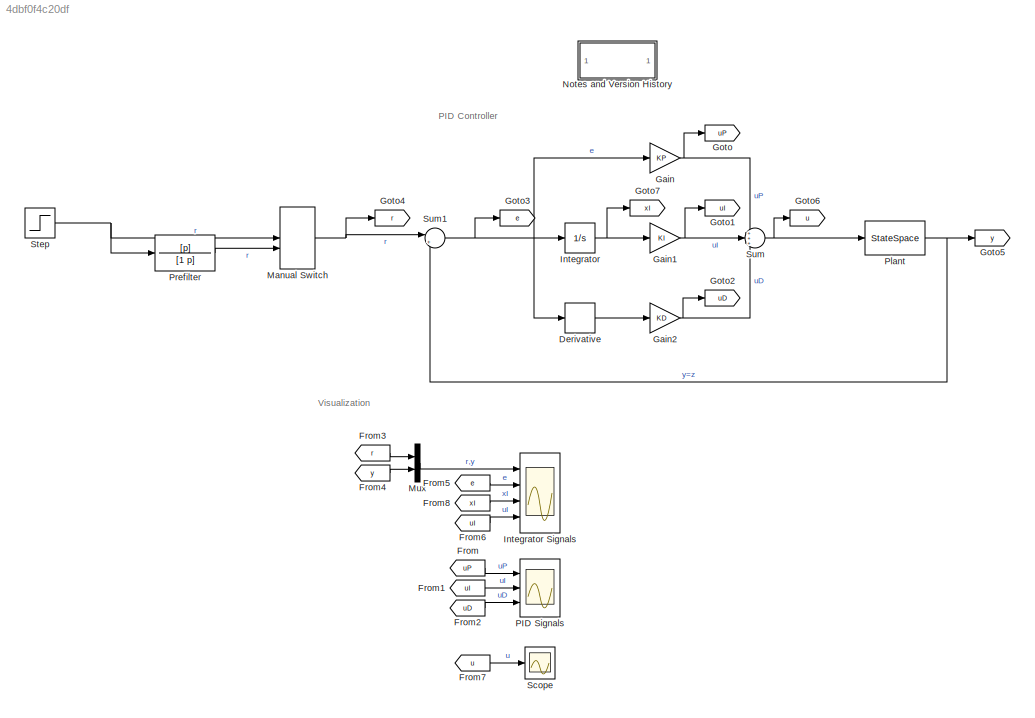
MODEL slx_4dbf0f4c20df
KIND model
CONFIG AbsTol = auto
CONFIG EnableMultiTasking = on
CONFIG FixedStep = auto
CONFIG MaxStep = deltaTMax
CONFIG MinStep = auto
CONFIG RelTol = 1e-3
CONFIG SampleTimeConstraint = Unconstrained
CONFIG Solver = ode45
CONFIG SolverName = ode45
CONFIG StartTime = 0.0
CONFIG StopTime = 60
BLOCK [Derivative] Derivative
BLOCK [From] From
  GotoTag = uP
BLOCK [From] From1
  GotoTag = uI
BLOCK [From] From2
  GotoTag = uD
BLOCK [From] From3
  GotoTag = r
BLOCK [From] From4
  GotoTag = y
BLOCK [From] From5
  GotoTag = e
BLOCK [From] From6
  GotoTag = uI
BLOCK [From] From7
  GotoTag = u
BLOCK [From] From8
  GotoTag = xI
BLOCK [Gain] Gain
  Gain = KP
  OutDataTypeStr = Inherit: Inherit via internal rule
  ParamDataTypeStr = Inherit: Inherit via internal rule
  SaturateOnIntegerOverflow = off
BLOCK [Gain] Gain1
  Gain = KI
  OutDataTypeStr = Inherit: Inherit via internal rule
  ParamDataTypeStr = Inherit: Inherit via internal rule
  SaturateOnIntegerOverflow = off
BLOCK [Gain] Gain2
  Gain = KD
  OutDataTypeStr = Inherit: Inherit via internal rule
  ParamDataTypeStr = Inherit: Inherit via internal rule
  SaturateOnIntegerOverflow = off
BLOCK [Goto] Goto
  GotoTag = uP
BLOCK [Goto] Goto1
  GotoTag = uI
BLOCK [Goto] Goto2
  GotoTag = uD
BLOCK [Goto] Goto3
  GotoTag = e
BLOCK [Goto] Goto4
  GotoTag = r
BLOCK [Goto] Goto5
  GotoTag = y
BLOCK [Goto] Goto6
  GotoTag = u
BLOCK [Goto] Goto7
  GotoTag = xI
BLOCK [Integrator] Integrator
  LimitOutput = on
  LowerSaturationLimit = -xILimit
  Ports = [1, 1]
  UpperSaturationLimit = xILimit
BLOCK [Scope] Integrator Signals
  Floating = off
  NumInputPorts = 4
  Ports = [4]
  ScopeSpecificationString = Simulink.scopes.TimeScopeBlockCfg('CurrentConfiguration', extmgr.ConfigurationSet(extmgr.Configuration('Core','General UI',true),extmgr.Configuration('Core','Source UI',true),extmgr.Configuration('Sources','WiredSimulink',true,'DataLoggingSaveFormat','StructureWithTime','DataLoggingLimitDataPoints',true,'DataLoggingDecimation','1','DataLoggingDecimateData',true,'DataLoggingVariableName','ScopeData...<+3746ch>
BLOCK [ManualSwitch] Manual Switch
  CurrentSetting = 0
BLOCK [Mux] Mux
  DisplayOption = bar
  Inputs = 2
  Ports = [2, 1]
BLOCK [SubSystem] Notes and Version History
  Ports = []
  RequestExecContextInheritance = off
BLOCK [Scope] PID Signals
  Floating = off
  NumInputPorts = 3
  Ports = [3]
  ScopeSpecificationString = Simulink.scopes.TimeScopeBlockCfg('CurrentConfiguration', extmgr.ConfigurationSet(extmgr.Configuration('Core','General UI',true),extmgr.Configuration('Core','Source UI',true),extmgr.Configuration('Sources','WiredSimulink',true,'DataLoggingSaveFormat','StructureWithTime','DataLoggingLimitDataPoints',true,'DataLoggingDecimation','1','DataLoggingDecimateData',true,'DataLoggingVariableName','ScopeData...<+2990ch>
BLOCK [StateSpace] Plant
  A = A
  B = B
  C = C
  D = D
  InitialCondition = x0
  Ports = [1, 1]
BLOCK [TransferFcn] Prefilter
  Denominator = [1 p]
  Numerator = [p]
BLOCK [Scope] Scope
  Floating = off
  NumInputPorts = 1
  Ports = [1]
  ScopeSpecificationString = Simulink.scopes.TimeScopeBlockCfg('CurrentConfiguration', extmgr.ConfigurationSet(extmgr.Configuration('Core','General UI',true),extmgr.Configuration('Core','Source UI',true),extmgr.Configuration('Sources','WiredSimulink',true,'DataLoggingSaveFormat','StructureWithTime','DataLoggingLimitDataPoints',true,'DataLoggingDecimation','1','DataLoggingDecimateData',true),extmgr.Configuration('Visuals','Tim...<+1737ch>
BLOCK [Step] Step
  SampleTime = 0
BLOCK [Sum] Sum
  IconShape = round
  InputSameDT = off
  Inputs = +++
  OutDataTypeStr = Inherit: Inherit via internal rule
  Ports = [3, 1]
  SaturateOnIntegerOverflow = off
BLOCK [Sum] Sum1
  IconShape = round
  InputSameDT = off
  Inputs = |+-
  OutDataTypeStr = Inherit: Inherit via internal rule
  Ports = [2, 1]
  SaturateOnIntegerOverflow = off
ANNOTATION (root): PID Controller
ANNOTATION (root): Visualization
ANNOTATION Notes and Version History: Illustrate PID control Christopher Lum <email> Version History 05/112/21: Created
LINE Derivative:1 -> Gain2:1
LINE From1:1 -> PID Signals:2
LINE From2:1 -> PID Signals:3
LINE From3:1 -> Mux:1
LINE From4:1 -> Mux:2
LINE From5:1 -> Integrator Signals:2
LINE From6:1 -> Integrator Signals:4
LINE From7:1 -> Scope:1
LINE From8:1 -> Integrator Signals:3
LINE From:1 -> PID Signals:1
NET Gain1:1 -> Goto1:1, Sum:2
NET Gain2:1 -> Goto2:1, Sum:3
NET Gain:1 -> Goto:1, Sum:1
NET Integrator:1 -> Gain1:1, Goto7:1
NET Manual Switch:1 -> Goto4:1, Sum1:1
LINE Mux:1 -> Integrator Signals:1
NET Plant:1 -> Goto5:1, Sum1:2
LINE Prefilter:1 -> Manual Switch:2
NET Step:1 -> Manual Switch:1, Prefilter:1
NET Sum1:1 -> Derivative:1, Gain:1, Goto3:1, Integrator:1
NET Sum:1 -> Goto6:1, Plant:1
note: NET lines group one-source signal fan-out (src -> all destinations, sorted); 1:1 wires keep LINE
